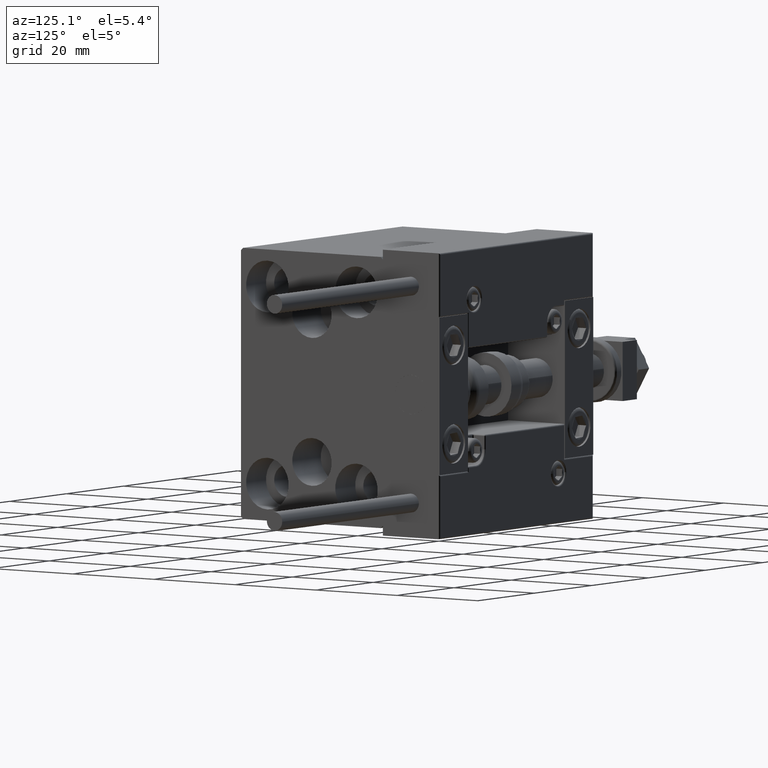
[diagram: clean part render]
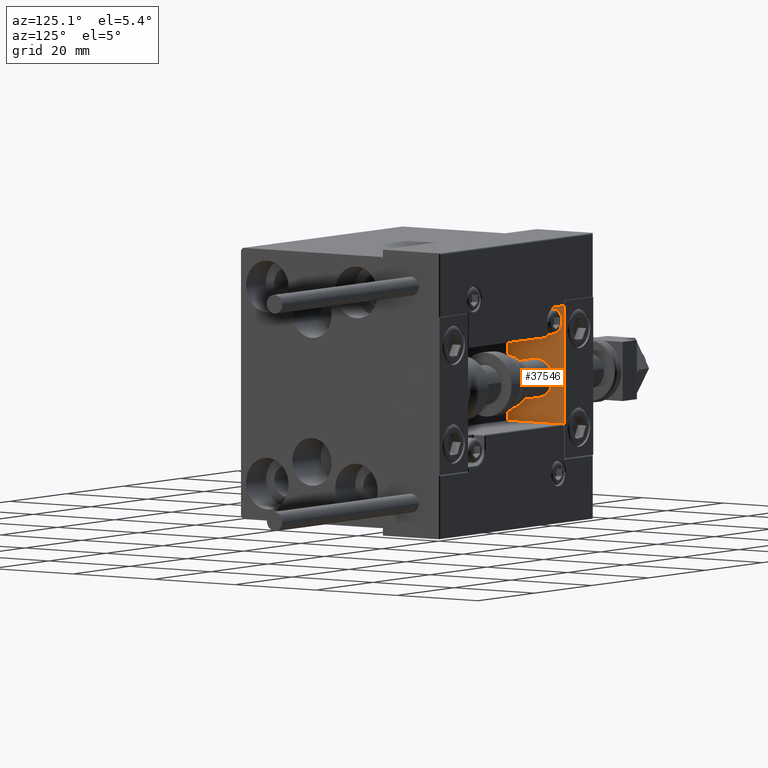
[diagram: same view with one face highlighted and labeled with its STEP entity id]
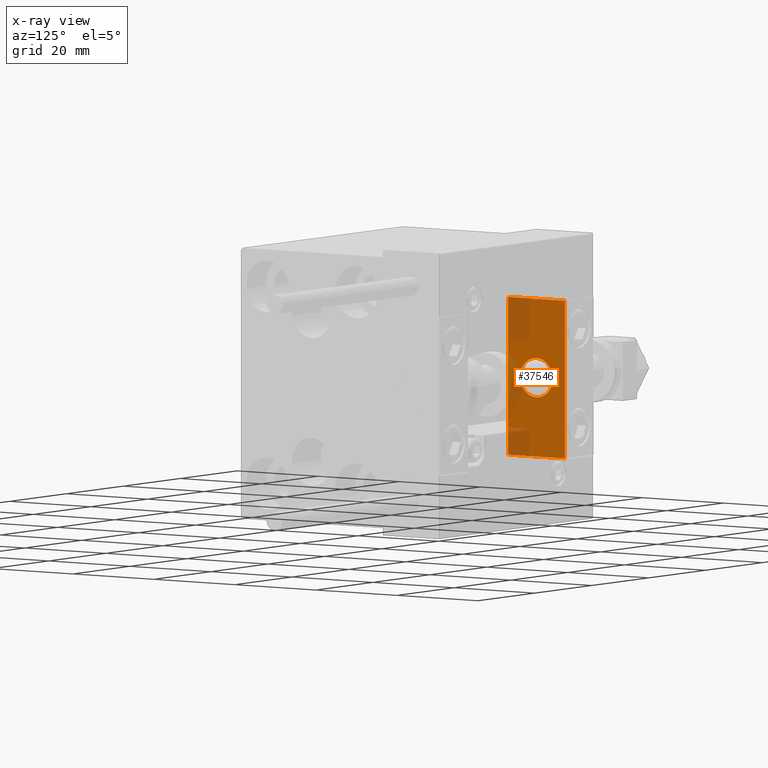
[diagram: x-ray of the same camera — body ghosted, the highlighted face saturated]
A machine part, auxiliary view. The second image highlights one B-rep face of the part: STEP entity #37546.
The next image is the same camera in x-ray: the body ghosted, the highlighted face saturated — about 26% of this face is hidden behind the body in this view.
In plain terms, the highlighted planar face has unit normal (1, 0, -0).
Its self-contained STEP definition (entity closure, byte-faithful):
#606 = EDGE_CURVE ( 'NONE', #4443, #22922, #33542, .T. ) ;
#920 = LINE ( 'NONE', #43825, #1600 ) ;
#1600 = VECTOR ( 'NONE', #47392, 1000.000000000000000 ) ;
#2168 = EDGE_LOOP ( 'NONE', ( #45191, #11300, #19885, #32350 ) ) ;
#4443 = VERTEX_POINT ( 'NONE', #46607 ) ;
#5461 = EDGE_CURVE ( 'NONE', #22922, #40502, #30275, .T. ) ;
#7824 = DIRECTION ( 'NONE',  ( 0.000000000000000000, 0.000000000000000000, 1.000000000000000000 ) ) ;
#8190 = CARTESIAN_POINT ( 'NONE',  ( 0.000000000000000000, -7.000000000000000000, 15.99999999999999289 ) ) ;
#10053 = VECTOR ( 'NONE', #31720, 1000.000000000000000 ) ;
#10332 = DIRECTION ( 'NONE',  ( -1.000000000000000000, 0.000000000000000000, -0.000000000000000000 ) ) ;
#10477 = EDGE_CURVE ( 'NONE', #49557, #40502, #920, .T. ) ;
#10693 = DIRECTION ( 'NONE',  ( 0.000000000000000000, 0.000000000000000000, -1.000000000000000000 ) ) ;
#11300 = ORIENTED_EDGE ( 'NONE', *, *, #35052, .F. ) ;
#12429 = VERTEX_POINT ( 'NONE', #31509 ) ;
#15536 = EDGE_CURVE ( 'NONE', #28080, #12429, #35859, .T. ) ;
#15707 = CARTESIAN_POINT ( 'NONE',  ( 0.000000000000000000, 0.000000000000000000, 0.000000000000000000 ) ) ;
#17304 = EDGE_LOOP ( 'NONE', ( #17346, #35235 ) ) ;
#17346 = ORIENTED_EDGE ( 'NONE', *, *, #32972, .F. ) ;
#19858 = AXIS2_PLACEMENT_3D ( 'NONE', #22938, #23191, #22443 ) ;
#19885 = ORIENTED_EDGE ( 'NONE', *, *, #606, .T. ) ;
#20039 = CARTESIAN_POINT ( 'NONE',  ( 0.000000000000000000, 7.000000000000000000, 15.99999999999999289 ) ) ;
#21760 = FACE_BOUND ( 'NONE', #17304, .T. ) ;
#22372 = CARTESIAN_POINT ( 'NONE',  ( 0.000000000000000000, 7.000000000000000000, 15.99999999999999289 ) ) ;
#22443 = DIRECTION ( 'NONE',  ( 0.000000000000000000, 0.000000000000000000, 1.000000000000000000 ) ) ;
#22922 = VERTEX_POINT ( 'NONE', #44317 ) ;
#22938 = CARTESIAN_POINT ( 'NONE',  ( 0.000000000000000000, 0.000000000000000000, 0.000000000000000000 ) ) ;
#23191 = DIRECTION ( 'NONE',  ( -1.000000000000000000, -0.000000000000000000, -0.000000000000000000 ) ) ;
#24809 = CARTESIAN_POINT ( 'NONE',  ( 0.000000000000000000, 4.898587196589412829E-16, -4.000000000000000000 ) ) ;
#25075 = VECTOR ( 'NONE', #45788, 1000.000000000000000 ) ;
#27158 = AXIS2_PLACEMENT_3D ( 'NONE', #49220, #10332, #48970 ) ;
#27616 = DIRECTION ( 'NONE',  ( -1.000000000000000000, -0.000000000000000000, -0.000000000000000000 ) ) ;
#27903 = LINE ( 'NONE', #20039, #10053 ) ;
#28080 = VERTEX_POINT ( 'NONE', #24809 ) ;
#29122 = PLANE ( 'NONE',  #27158 ) ;
#30275 = LINE ( 'NONE', #38416, #25075 ) ;
#31509 = CARTESIAN_POINT ( 'NONE',  ( 0.000000000000000000, 0.000000000000000000, 4.000000000000000000 ) ) ;
#31720 = DIRECTION ( 'NONE',  ( 0.000000000000000000, -1.000000000000000000, 0.000000000000000000 ) ) ;
#32350 = ORIENTED_EDGE ( 'NONE', *, *, #5461, .T. ) ;
#32972 = EDGE_CURVE ( 'NONE', #12429, #28080, #40165, .T. ) ;
#33542 = LINE ( 'NONE', #22372, #43153 ) ;
#35052 = EDGE_CURVE ( 'NONE', #4443, #49557, #27903, .T. ) ;
#35235 = ORIENTED_EDGE ( 'NONE', *, *, #15536, .F. ) ;
#35859 = CIRCLE ( 'NONE', #41569, 4.000000000000000000 ) ;
#37287 = FACE_OUTER_BOUND ( 'NONE', #2168, .T. ) ;
#37546 = ADVANCED_FACE ( 'NONE', ( #21760, #37287 ), #29122, .T. ) ;
#38416 = CARTESIAN_POINT ( 'NONE',  ( 0.000000000000000000, 7.000000000000000000, -16.00000000000000711 ) ) ;
#40165 = CIRCLE ( 'NONE', #19858, 4.000000000000000000 ) ;
#40502 = VERTEX_POINT ( 'NONE', #49782 ) ;
#41569 = AXIS2_PLACEMENT_3D ( 'NONE', #15707, #27616, #7824 ) ;
#43153 = VECTOR ( 'NONE', #10693, 1000.000000000000000 ) ;
#43825 = CARTESIAN_POINT ( 'NONE',  ( 0.000000000000000000, -7.000000000000000000, 15.99999999999999289 ) ) ;
#44317 = CARTESIAN_POINT ( 'NONE',  ( 0.000000000000000000, 7.000000000000000000, -16.00000000000000711 ) ) ;
#45191 = ORIENTED_EDGE ( 'NONE', *, *, #10477, .F. ) ;
#45788 = DIRECTION ( 'NONE',  ( 0.000000000000000000, -1.000000000000000000, 0.000000000000000000 ) ) ;
#46607 = CARTESIAN_POINT ( 'NONE',  ( 0.000000000000000000, 7.000000000000000000, 15.99999999999999289 ) ) ;
#47392 = DIRECTION ( 'NONE',  ( 0.000000000000000000, 0.000000000000000000, -1.000000000000000000 ) ) ;
#48970 = DIRECTION ( 'NONE',  ( -0.000000000000000000, 0.000000000000000000, 1.000000000000000000 ) ) ;
#49220 = CARTESIAN_POINT ( 'NONE',  ( 0.000000000000000000, 0.000000000000000000, 0.000000000000000000 ) ) ;
#49557 = VERTEX_POINT ( 'NONE', #8190 ) ;
#49782 = CARTESIAN_POINT ( 'NONE',  ( 0.000000000000000000, -7.000000000000000000, -16.00000000000000711 ) ) ;